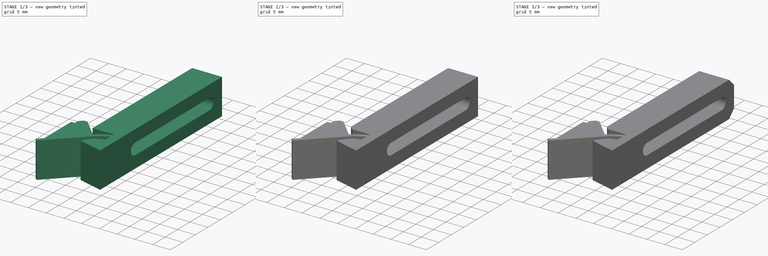
[diagram: build sequence overview — one tinted view per stage of 3, left to right]
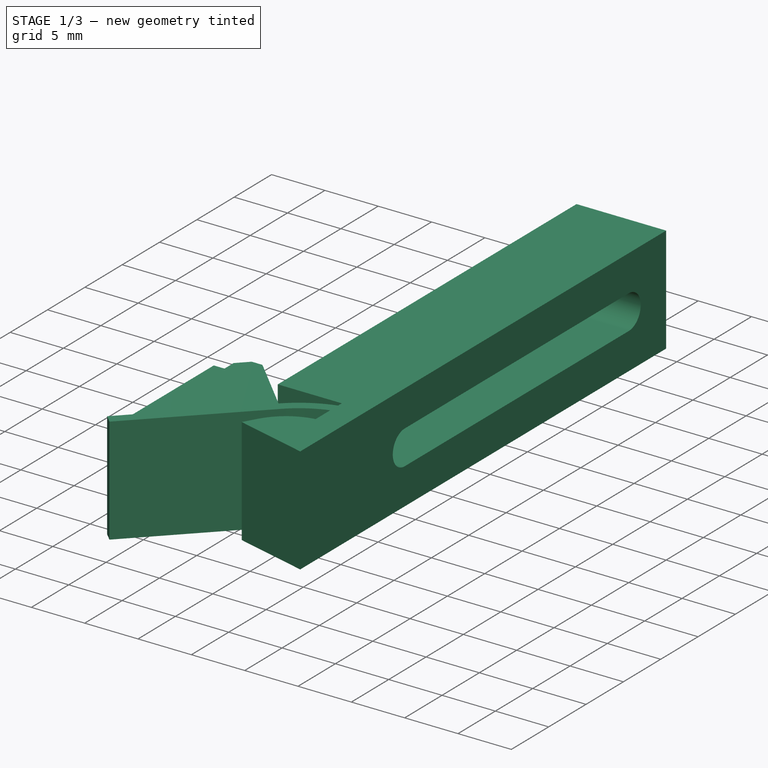
[diagram: stage 1 of 3 — iso view after this stage's code; geometry added in this stage tinted green]
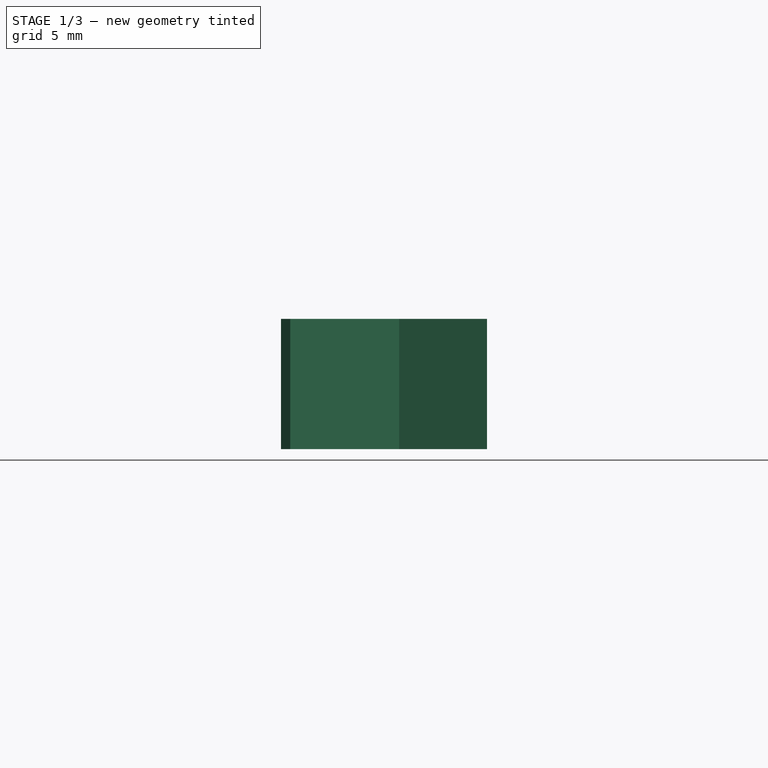
[diagram: stage 1 of 3 — front view after this stage's code; geometry added in this stage tinted green]
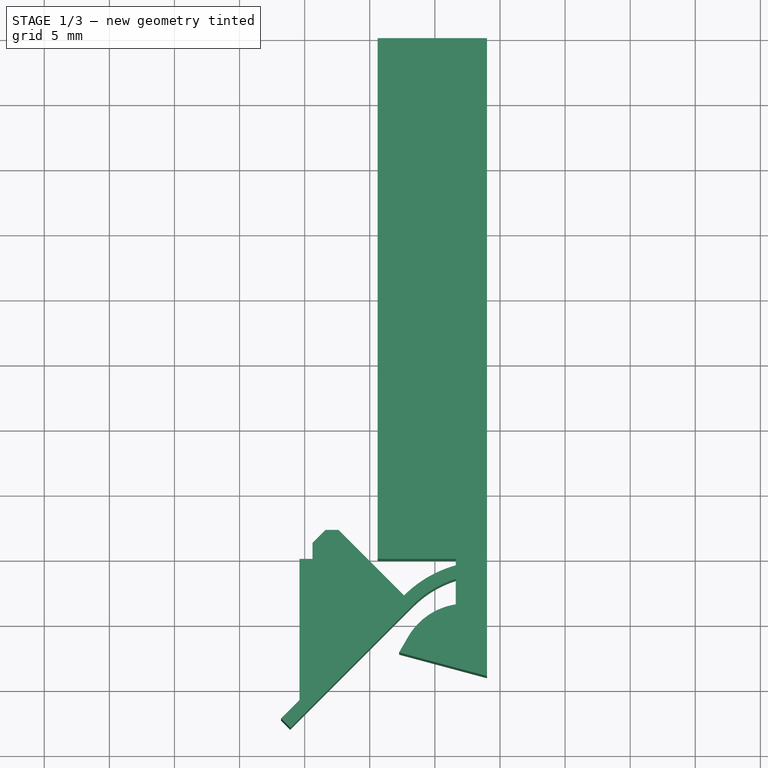
[diagram: stage 1 of 3 — top view after this stage's code; geometry added in this stage tinted green]
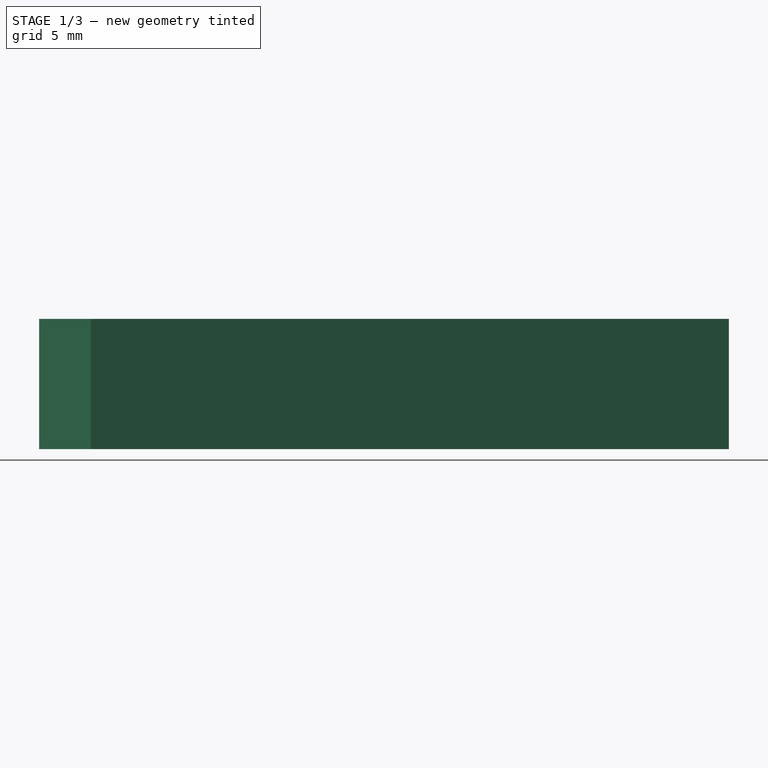
[diagram: stage 1 of 3 — right view after this stage's code; geometry added in this stage tinted green]
FCSTD DOCUMENT  (FreeCAD 0.19R24276 (Git))
Label: board-mount-dynamic
License: All rights reserved
LicenseURL: http://en.wikipedia.org/wiki/All_rights_reserved
objects: Sketcher::SketchObject×3, PartDesign::Pocket×2, PartDesign::Chamfer×2, PartDesign::Plane×2, PartDesign::Pad×1, PartDesign::Body×1
note: 16 computed .brp shape members not serialized (recipe doc carries the construction recipe); baked Part::Feature solids carry a one-line shape summary decoded from their .brp

FEATURE [Sketcher::SketchObject] Sketch
  FullyConstrained = true
  MapMode = 5
  Support = -> [XY_Plane]
  sketch-geometry (25):
    g0: LineSegment StartX=0 StartY=0 StartZ=0 EndX=0 EndY=30 EndZ=0
    g1: LineSegment StartX=0 StartY=30 StartZ=0 EndX=4 EndY=30 EndZ=0
    g2: LineSegment StartX=4 StartY=30 StartZ=0 EndX=4 EndY=0 EndZ=0
    g3: LineSegment StartX=1.6 StartY=-10 StartZ=0 EndX=-4.4 EndY=-10 EndZ=0
    g4: LineSegment StartX=0 StartY=0 StartZ=0 EndX=-4.4 EndY=0 EndZ=0
    g5: LineSegment StartX=-4.4 StartY=0 StartZ=0 EndX=-4.4 EndY=-10 EndZ=0
    g6: LineSegment StartX=1.6 StartY=-10.5 StartZ=0 EndX=1.6 EndY=-10 EndZ=0
    g7: ArcOfCircle CenterX=4 CenterY=-19.1741 CenterZ=0 NormalX=0 NormalY=0 NormalZ=1 AngleXU=0 Radius=9 StartAngle=1.84073 EndAngle=2.35619
    g8: LineSegment StartX=-2.36396 StartY=-12.8101 StartZ=0 EndX=-7.4 EndY=-7.7741 EndZ=0
    g9: LineSegment StartX=-7.4 StartY=-7.7741 StartZ=0 EndX=-8.4 EndY=-7.7741 EndZ=0
    g10: LineSegment StartX=-8.4 StartY=-7.7741 StartZ=0 EndX=-9.4 EndY=-8.7741 EndZ=0
    g11: LineSegment StartX=-11.1071 StartY=-22.9675 StartZ=0 EndX=-1.65685 EndY=-13.5172 EndZ=0
    g12: LineSegment StartX=-10.4 StartY=-20.8462 StartZ=0 EndX=-11.8142 EndY=-22.2604 EndZ=0
    g13: LineSegment StartX=-11.8142 StartY=-22.2604 StartZ=0 EndX=-11.1071 EndY=-22.9675 EndZ=0
    g14: LineSegment StartX=4 StartY=0 StartZ=0 EndX=4 EndY=-19 EndZ=0
    g15: LineSegment StartX=4 StartY=-19 StartZ=0 EndX=-2.75 EndY=-17.1913 EndZ=0
    g16: LineSegment StartX=-2.75 StartY=-17.1913 StartZ=0 EndX=-2.06372 EndY=-16.0027 EndZ=0
    g17: LineSegment StartX=1.6 StartY=-13.5 StartZ=0 EndX=1.6 EndY=-11.5426 EndZ=0
    g18: ArcOfCircle CenterX=2.37249 CenterY=-18.5639 CenterZ=0 NormalX=0 NormalY=0 NormalZ=1 AngleXU=0 Radius=5.12249 StartAngle=1.72218 EndAngle=2.61799
    g19: ArcOfCircle CenterX=4 CenterY=-19.1741 CenterZ=0 NormalX=0 NormalY=0 NormalZ=1 AngleXU=0 Radius=8 StartAngle=1.87549 EndAngle=2.35619
    g20: LineSegment StartX=-4.4 StartY=0 StartZ=0 EndX=-4.4 EndY=30 EndZ=0
    g21: LineSegment StartX=-4.4 StartY=30 StartZ=0 EndX=0 EndY=30 EndZ=0
    g22: LineSegment StartX=-9.4 StartY=-8.7741 StartZ=0 EndX=-9.4 EndY=-10 EndZ=0
    g23: LineSegment StartX=-9.4 StartY=-10 StartZ=0 EndX=-10.4 EndY=-10 EndZ=0
    g24: LineSegment StartX=-10.4 StartY=-10 StartZ=0 EndX=-10.4 EndY=-20.8462 EndZ=0
  constraints (75):
    c: Coincident(g-1,g0)
    c: PointOnObject(g0,g-2)
    c: Coincident(g0,g1)
    c: Horizontal(g1)
    c: Coincident(g1,g2)
    c: Vertical(g2)
    c: Coincident(g0,g4)
    c: PointOnObject(g4,g-1)
    c: Coincident(g4,g5)
    c: Vertical(g5)
    c: Horizontal(g3)
    c: DistanceY(g5,g5) = 10
    c: Coincident(g6,g3)
    c: Vertical(g6)
    c: DistanceY(g6,g6) = 0.5
    c: DistanceX(g4,g2) = 8.4
    c: DistanceX(g0,g2) = 4
    c: Coincident(g7,g6)
    c: DistanceX(g3,g3) = 6
    c: Coincident(g3,g5)
    c: Horizontal(g9)
    c: Coincident(g9,g10)
    c: Angle(g10,g9) = 2.35619
    c: Coincident(g8,g7)
    c: PointOnObject(g7,g2)
    c: Diameter(g7) = 18
    c: Coincident(g12,g13)
    c: Coincident(g13,g11)
    c: Parallel(g12,g11)
    c: Perpendicular(g11,g13)
    c: Distance(g13) = 1
    c: Distance(g12) = 2
    c: DistanceX(g10,g9) = 2
    c: Distance(g9) = 1
    c: Angle(g-2,g11) = 2.35619
    c: PointOnObject(g7,g8)
    c: Distance(g0) = 30
    c: Angle(g-2,g8) = 0.785398
    c: Coincident(g9,g8)
    c: DistanceX(g8,g3) = 3
    c: Coincident(g2,g14)
    c: Vertical(g14)
    c: Coincident(g14,g15)
    c: Coincident(g15,g16)
    c: DistanceY(g14,g0) = 19
    c: PointOnObject(g17,g6)
    c: Parallel(g17,g6)
    c: Coincident(g18,g16)
    c: Tangent(g16,g18)
    c: Coincident(g18,g17)
    c: Angle(g14,g15) = 1.309
    c: Angle(g16,g14) = 0.523599
    c: DistanceX(g15,g14) = 6.75
    c: Coincident(g19,g7)
    c: Diameter(g19) = 16
    c: Coincident(g17,g19)
    c: Coincident(g11,g19)
    c: PointOnObject(g2,g-1)
    c: Tangent(g11,g19)
    c: DistanceY(g17,g3) = 3.5
    c: PointOnObject(g18,g15)
    c: Coincident(g5,g20)
    c: Vertical(g20)
    c: Coincident(g20,g21)
    c: Coincident(g21,g1)
    c: Horizontal(g21)
    c: Coincident(g10,g22)
    c: Vertical(g22)
    c: Coincident(g22,g23)
    c: Horizontal(g23)
    c: Coincident(g23,g24)
    c: Coincident(g24,g12)
    c: Vertical(g24)
    c: DistanceX(g23,g23) = 1
    c: PointOnObject(g3,g23)
FEATURE [PartDesign::Pad] Pad
  Direction = (1,1,1)
  Length = 10
  Length2 = 100
  Profile = -> Sketch
  Type = 0
FEATURE [Sketcher::SketchObject] Sketch001
  FullyConstrained = true
  MapMode = 5
  Placement = pos=(0,0,0) rot=(0.57735,0.57735,0.57735;2.0944rad)
  Support = -> [YZ_Plane]
  sketch-geometry (4):
    g0: ArcOfCircle CenterX=-5 CenterY=5 CenterZ=0 NormalX=0 NormalY=0 NormalZ=1 AngleXU=0 Radius=1.6 StartAngle=1.5708 EndAngle=4.71239
    g1: ArcOfCircle CenterX=25 CenterY=5 CenterZ=0 NormalX=0 NormalY=0 NormalZ=1 AngleXU=0 Radius=1.6 StartAngle=4.71239 EndAngle=7.85398
    g2: LineSegment StartX=-5 StartY=3.4 StartZ=0 EndX=25 EndY=3.4 EndZ=0
    g3: LineSegment StartX=-5 StartY=6.6 StartZ=0 EndX=25 EndY=6.6 EndZ=0
  constraints (10):
    c: Tangent(g0,g3) = 1.5708
    c: Tangent(g0,g2) = -1.5708
    c: Tangent(g2,g1) = -1.5708
    c: Tangent(g3,g1) = 1.5708
    c: Horizontal(g2)
    c: Equal(g0,g1)
    c: Diameter(g1) = 3.2
    c: DistanceX(g0,g1) = 30
    c: DistanceY(g-1,g0) = 5
    c: DistanceX(g0,g-1) = 5
FEATURE [PartDesign::Pocket] Pocket
  BaseFeature = -> Pad
  Length = 5
  Length2 = 100
  Profile = -> Sketch001
  Reversed = true
  Type = 0
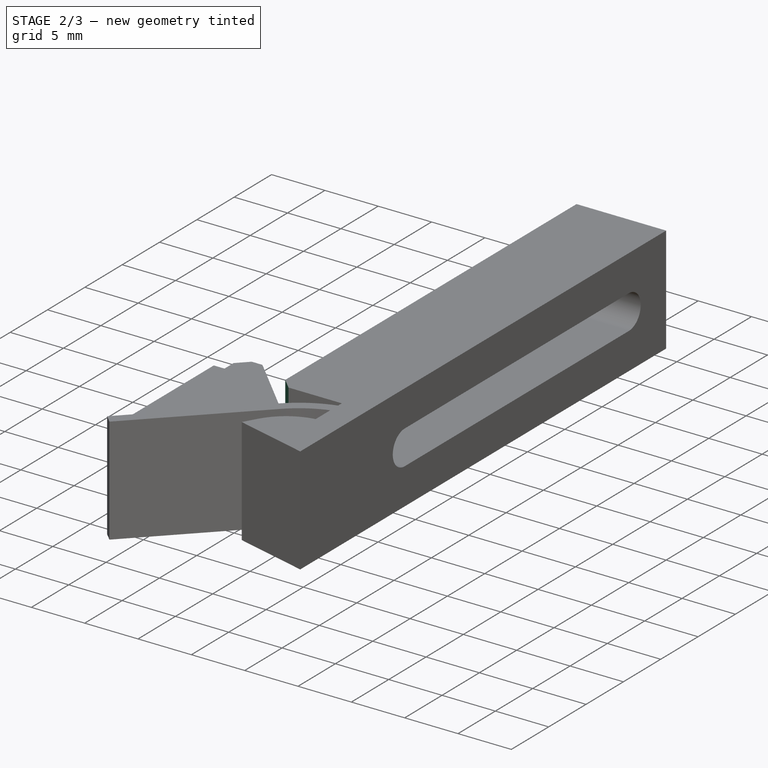
[diagram: stage 2 of 3 — iso view after this stage's code; geometry added in this stage tinted green]
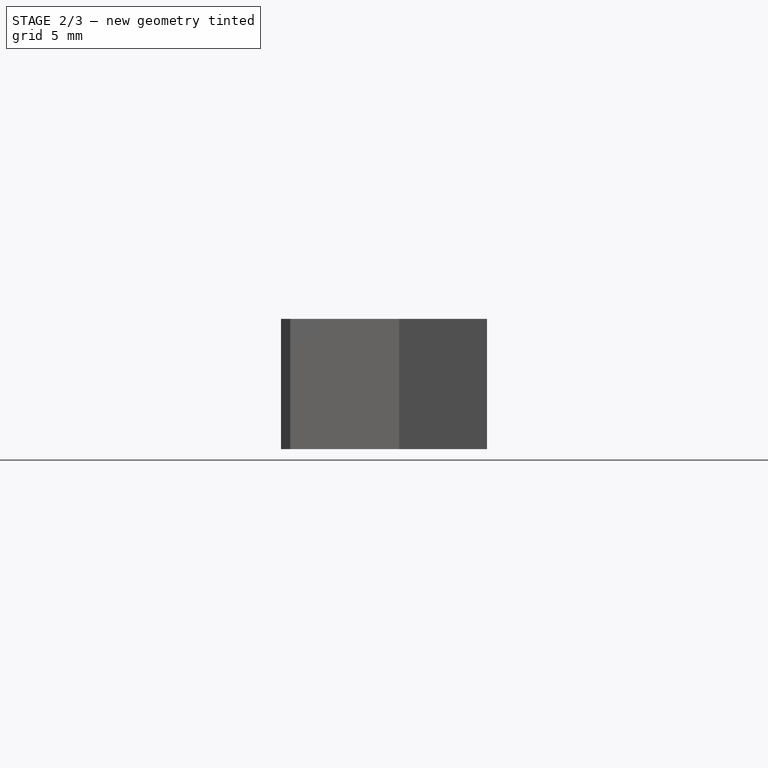
[diagram: stage 2 of 3 — front view after this stage's code; geometry added in this stage tinted green]
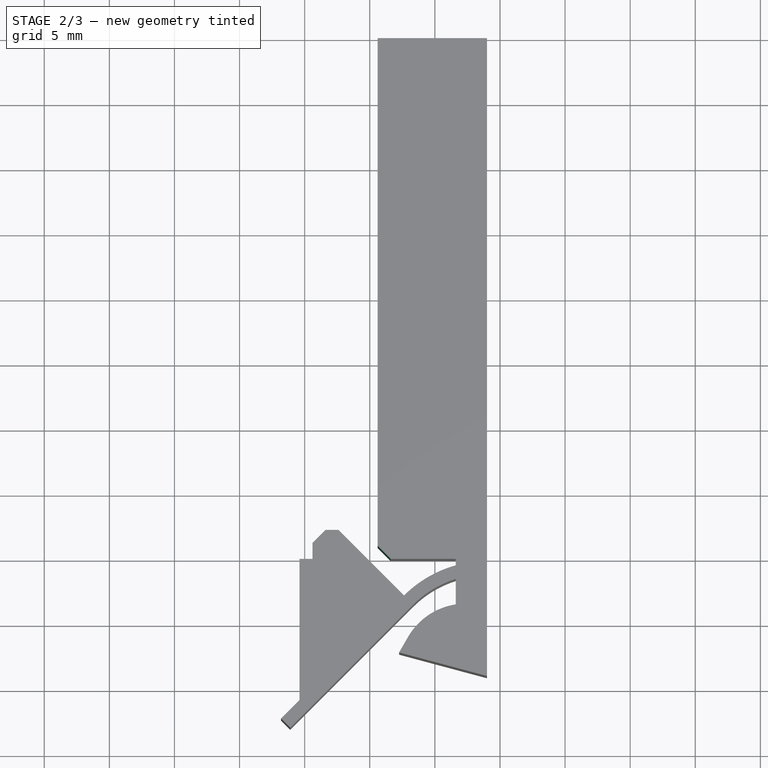
[diagram: stage 2 of 3 — top view after this stage's code; geometry added in this stage tinted green]
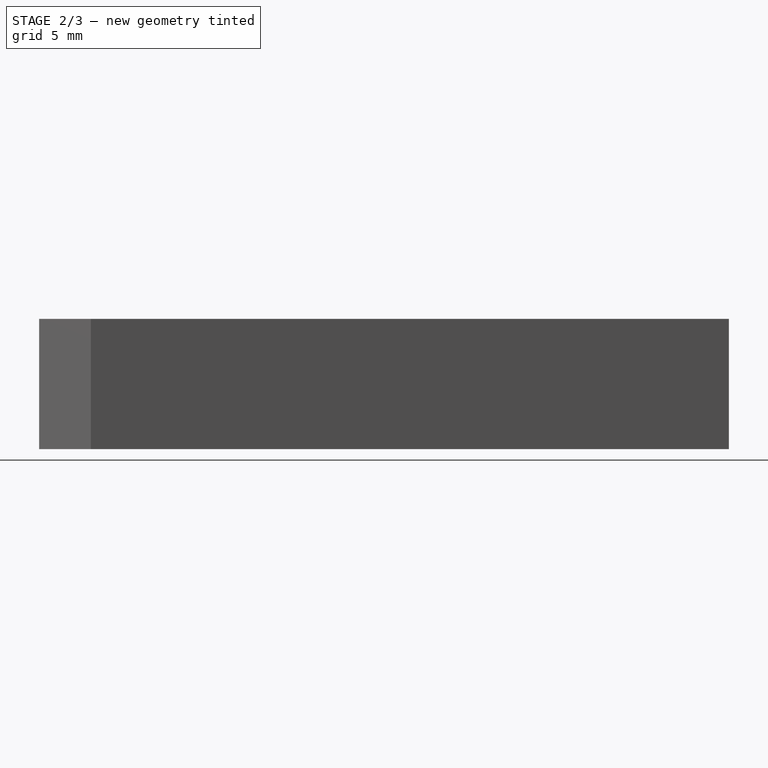
[diagram: stage 2 of 3 — right view after this stage's code; geometry added in this stage tinted green]
FEATURE [PartDesign::Chamfer] Chamfer
  Angle = 45
  Base = -> Pocket [Edge5]
  BaseFeature = -> Pocket
  ChamferType = 0
  FlipDirection = false
  Size = 1
  Size2 = 1
  SupportTransform = false
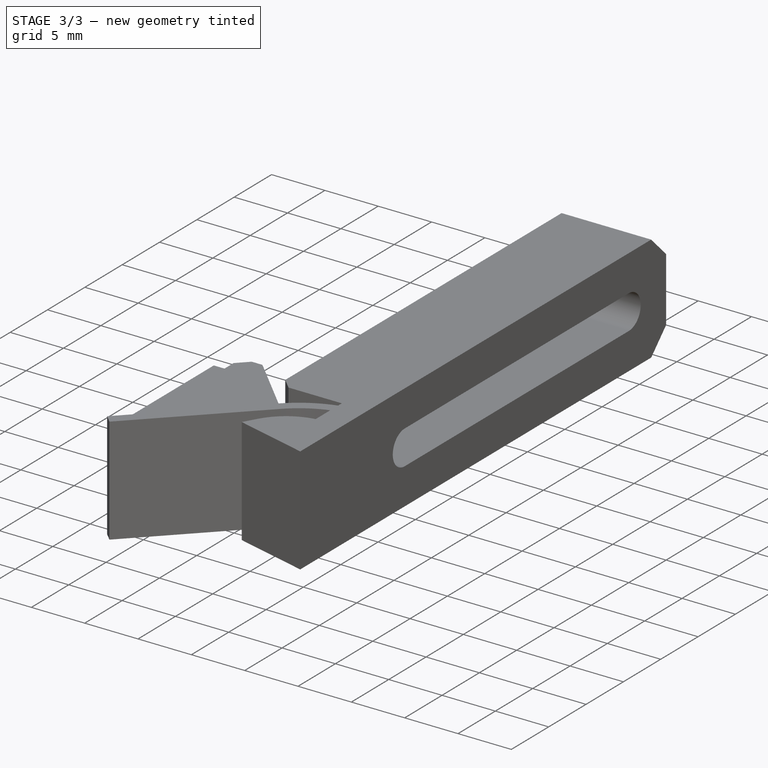
[diagram: stage 3 of 3 — iso view after this stage's code; geometry added in this stage tinted green]
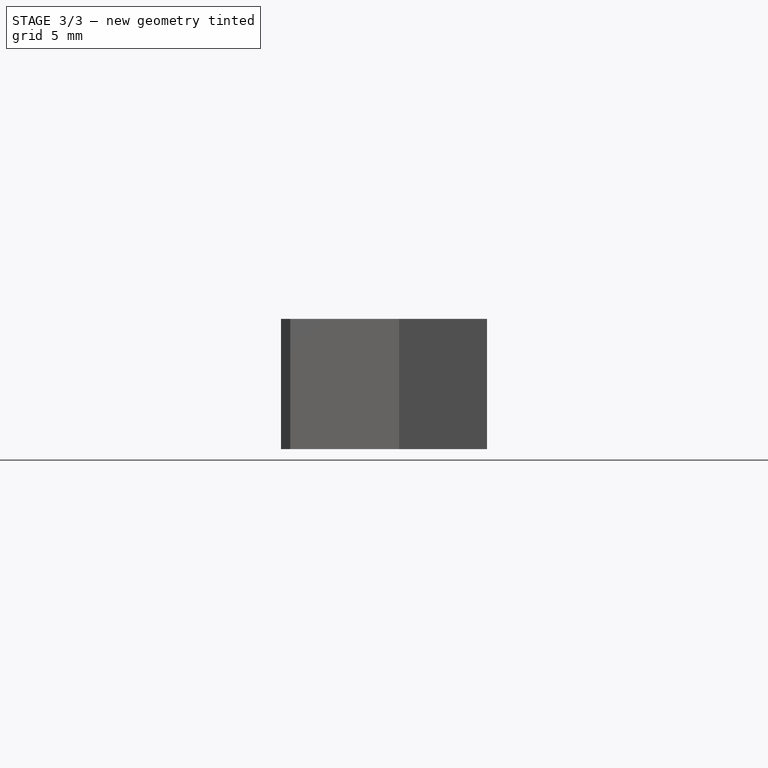
[diagram: stage 3 of 3 — front view after this stage's code; geometry added in this stage tinted green]
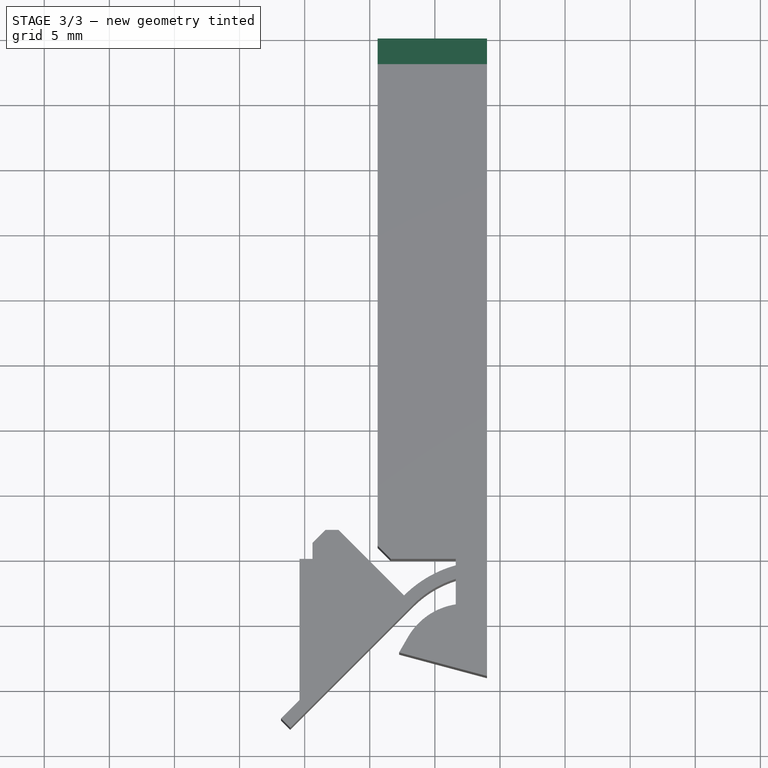
[diagram: stage 3 of 3 — top view after this stage's code; geometry added in this stage tinted green]
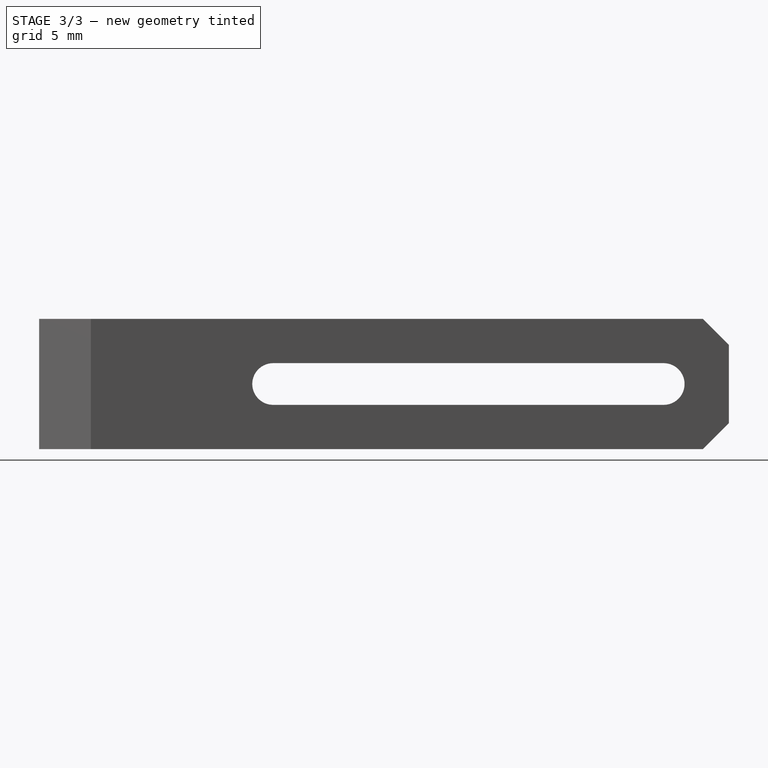
[diagram: stage 3 of 3 — right view after this stage's code; geometry added in this stage tinted green]
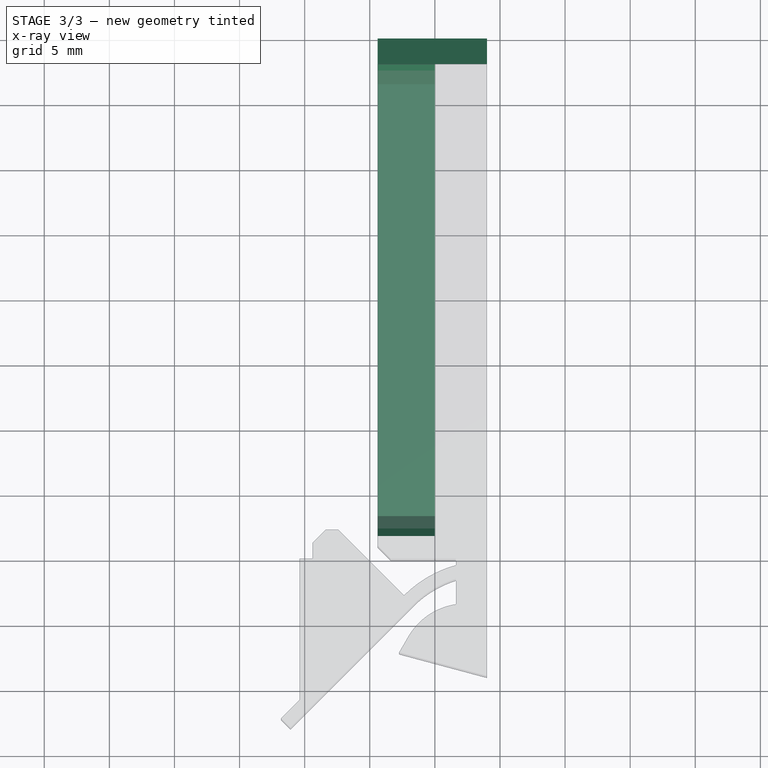
[diagram: stage 3 of 3 — x-ray composite at the top view; earlier geometry ghosted, this stage's added geometry solid]
FEATURE [PartDesign::Plane] DatumPlane
  Length = 65.4881
  MapMode = 5
  Placement = pos=(-4.4,0,0) rot=(0.57735,-0.57735,-0.57735;2.0944rad)
  ResizeMode = 0
  Support = -> [Chamfer]
  Width = 60.4881
FEATURE [Sketcher::SketchObject] Sketch002
  FullyConstrained = true
  MapMode = 5
  Placement = pos=(-4.4,0,0) rot=(0.57735,-0.57735,-0.57735;2.0944rad)
  Support = -> [DatumPlane]
  sketch-geometry (10):
    g0: LineSegment StartX=6.58771 StartY=7.75 StartZ=0 EndX=8.17543 EndY=5 EndZ=0
    g1: LineSegment StartX=8.17543 StartY=5 StartZ=0 EndX=6.58771 EndY=2.25 EndZ=0
    g2: LineSegment StartX=6.58771 StartY=2.25 StartZ=0 EndX=-26.5877 EndY=2.25 EndZ=0
    g3: LineSegment StartX=-26.5877 StartY=2.25 StartZ=0 EndX=-28.1754 EndY=5 EndZ=0
    g4: LineSegment StartX=-28.1754 StartY=5 StartZ=0 EndX=-26.5877 EndY=7.75 EndZ=0
    g5: LineSegment StartX=-26.5877 StartY=7.75 StartZ=0 EndX=6.58771 EndY=7.75 EndZ=0
    g6: LineSegment StartX=-28.1754 StartY=5 StartZ=0 EndX=8.17543 EndY=5 EndZ=0
    g7: GeomPoint X=5 Y=5 Z=0
    g8: LineSegment StartX=5 StartY=5 StartZ=0 EndX=7.38157 EndY=6.375 EndZ=0
    g9: LineSegment StartX=-27.3816 StartY=6.375 StartZ=0 EndX=-25 EndY=5 EndZ=0
  constraints (27):
    c: Coincident(g0,g1)
    c: Coincident(g1,g2)
    c: Horizontal(g2)
    c: Coincident(g2,g3)
    c: Coincident(g3,g4)
    c: Coincident(g4,g5)
    c: Coincident(g5,g0)
    c: Horizontal(g5)
    c: Coincident(g6,g3)
    c: Coincident(g6,g0)
    c: Horizontal(g6)
    c: Angle(g0,g1) = 2.0944
    c: Angle(g0,g6) = 1.0472
    c: Angle(g3,g4) = 2.0944
    c: Angle(g6,g4) = 1.0472
    c: DistanceY(g2,g4) = 5.5
    c: DistanceY(g3,g4) = 2.75
    c: Coincident(g8,g7)
    c: Perpendicular(g0,g8)
    c: Symmetric(g0,g0,g8)
    c: DistanceY(g-1,g7) = 5
    c: PointOnObject(g9,g6)
    c: Perpendicular(g4,g9)
    c: Symmetric(g4,g3,g9)
    c: DistanceX(g9,g7) = 30
    c: PointOnObject(g7,g6)
    c: DistanceX(g-1,g7) = 5
FEATURE [PartDesign::Pocket] Pocket001
  BaseFeature = -> Chamfer
  Length = 4.4
  Length2 = 100
  Profile = -> Sketch002
  Type = 0
FEATURE [PartDesign::Chamfer] Chamfer001
  Angle = 45
  Base = -> Pocket001 [Edge18,Edge54]
  BaseFeature = -> Pocket001
  ChamferType = 0
  FlipDirection = false
  Size = 2
  Size2 = 1
  SupportTransform = false
FEATURE [PartDesign::Plane] DatumPlane001  label="PrintPlane"
  Length = 60.4881
  MapMode = 5
  Placement = pos=(0,0,0) rot=(1,0,0;3.14159rad)
  ResizeMode = 0
  Support = -> [Chamfer001]
  Width = 65.4881
FEATURE [PartDesign::Body] Body
  Group = -> [Sketch,Pad,Sketch001,Pocket,Chamfer,DatumPlane,Sketch002,Pocket001,Chamfer001,DatumPlane001]
  Origin = -> Origin
  Tip = -> Chamfer001
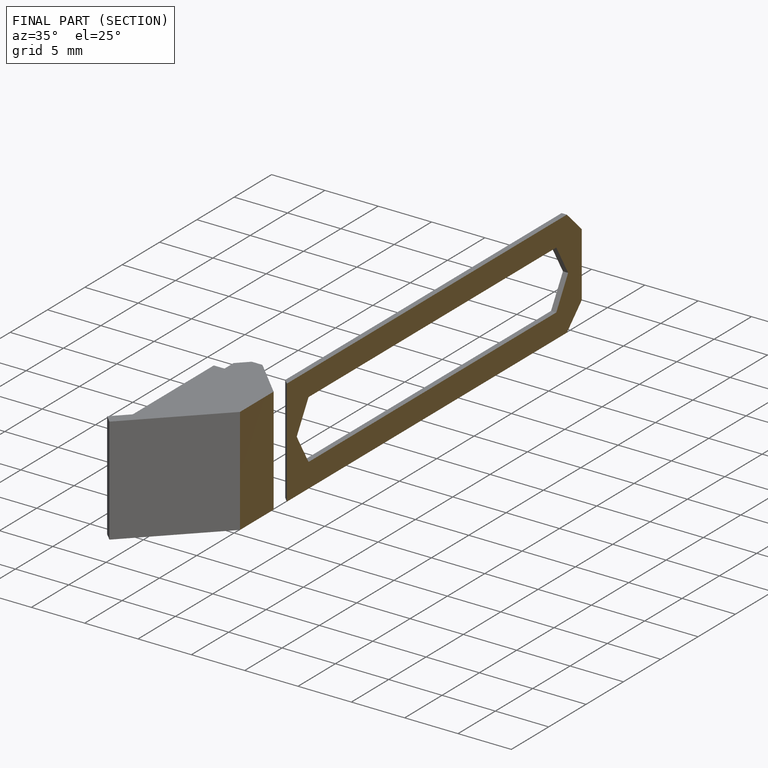
[diagram: finished part — half-section view (interior)]
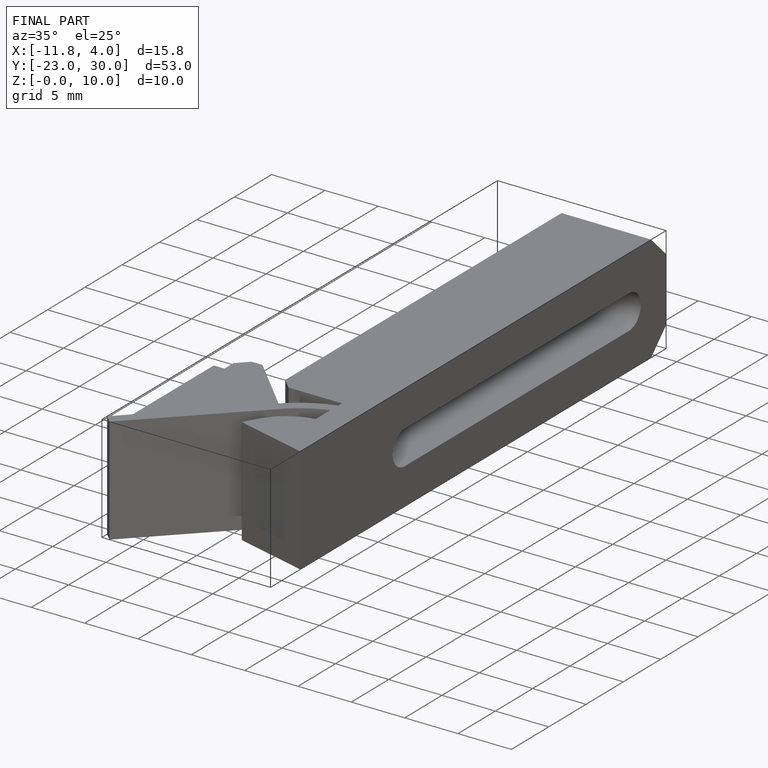
[diagram: finished part — iso view with bounding-box wireframe]
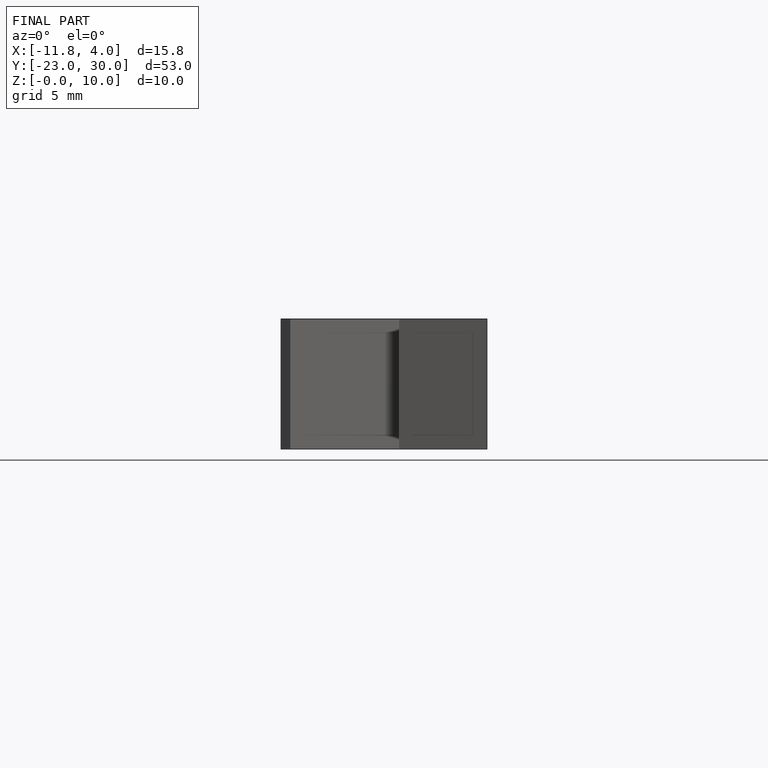
[diagram: finished part — front view with bounding-box wireframe]
